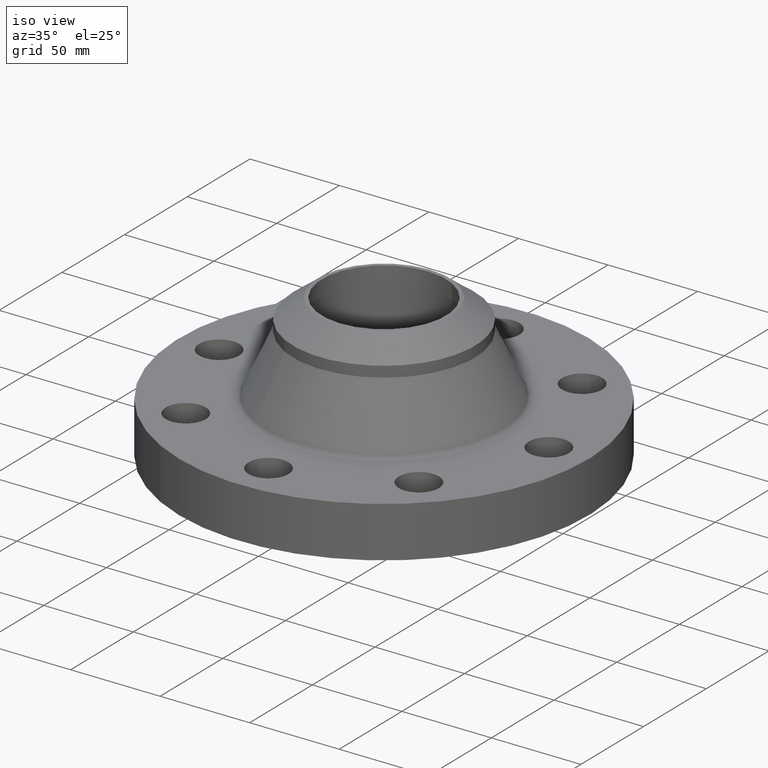
[diagram: clean part render]
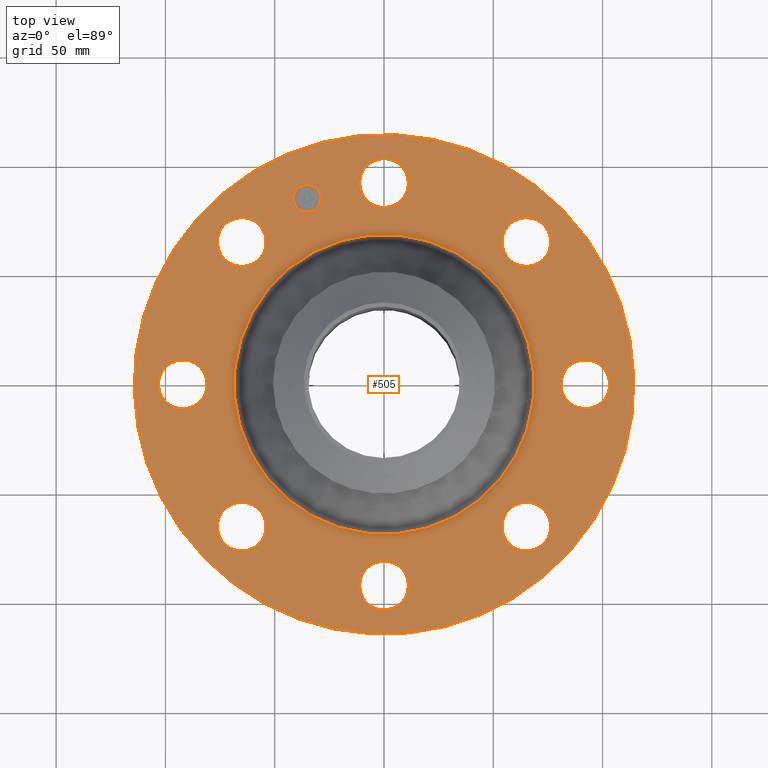
[diagram: tour spotlight — one face highlighted and labeled with its STEP entity id]
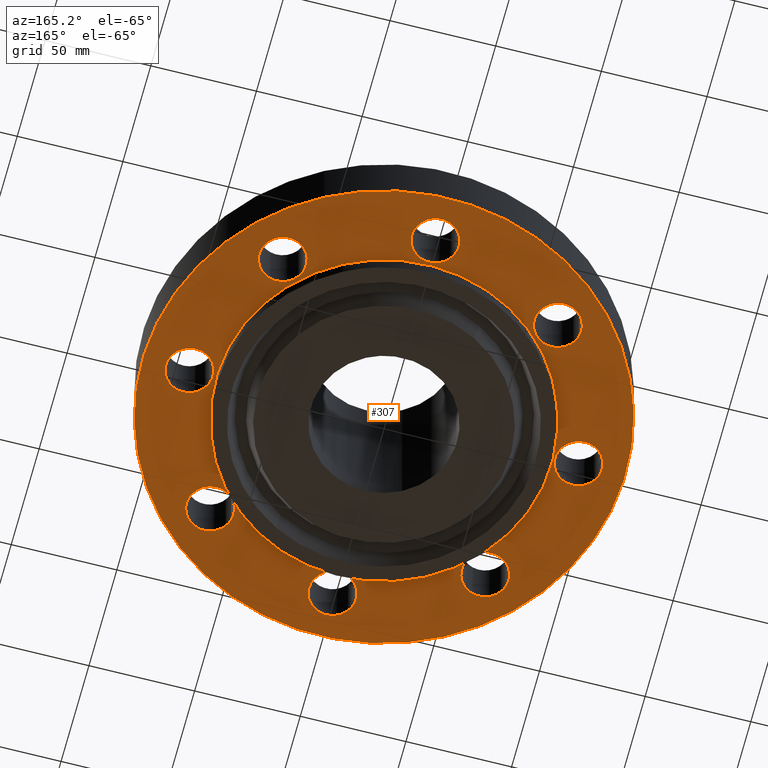
[diagram: tour spotlight — one face highlighted and labeled with its STEP entity id]
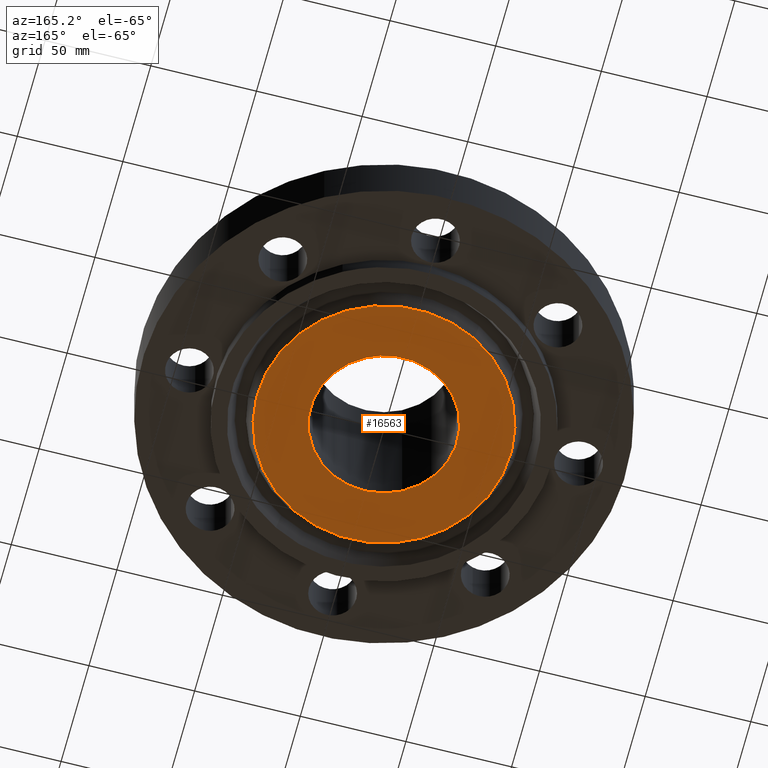
[diagram: tour spotlight — one face highlighted and labeled with its STEP entity id]
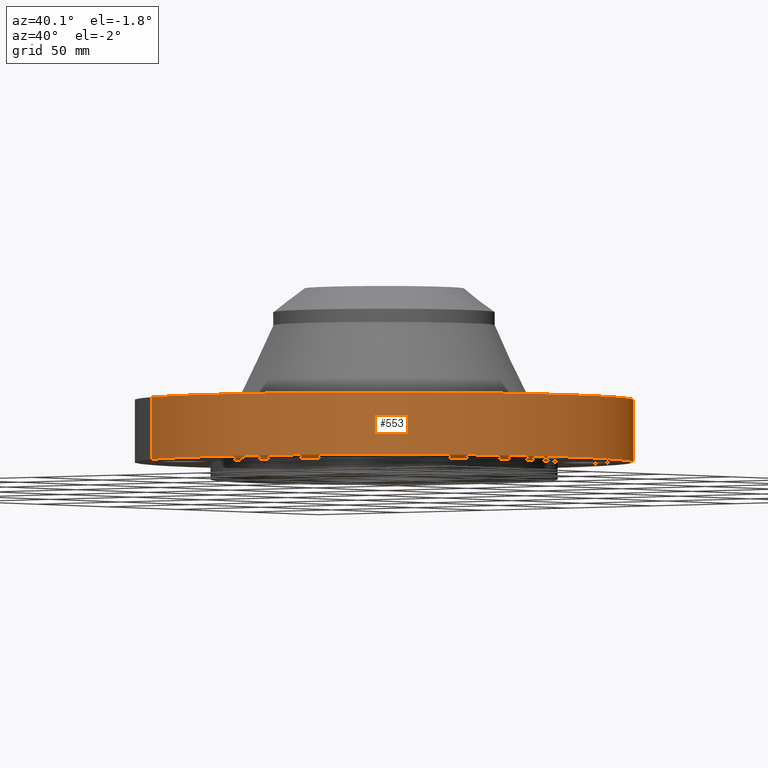
[diagram: tour spotlight — one face highlighted and labeled with its STEP entity id]
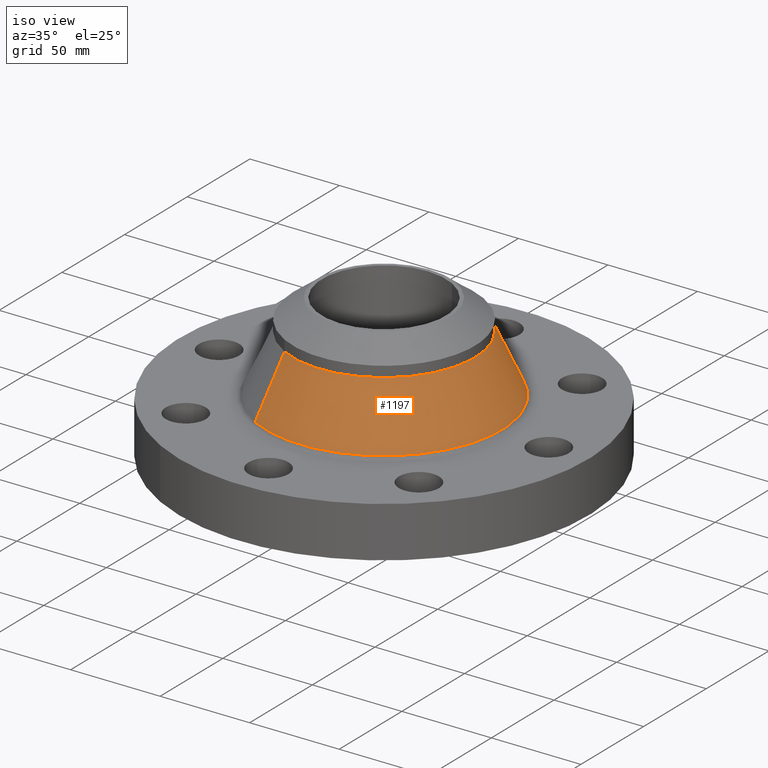
[diagram: tour spotlight — one face highlighted and labeled with its STEP entity id]
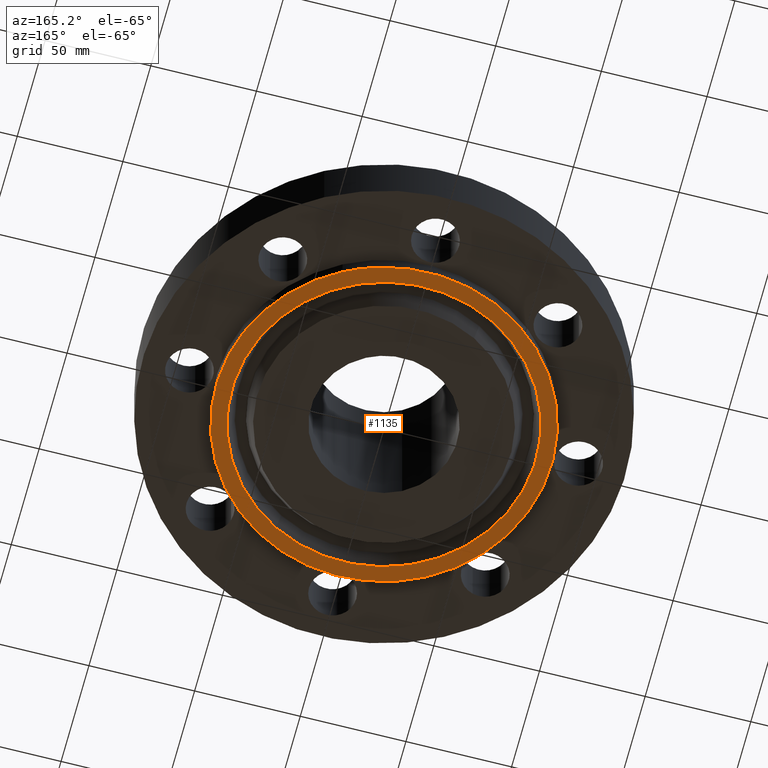
[diagram: tour spotlight — one face highlighted and labeled with its STEP entity id]
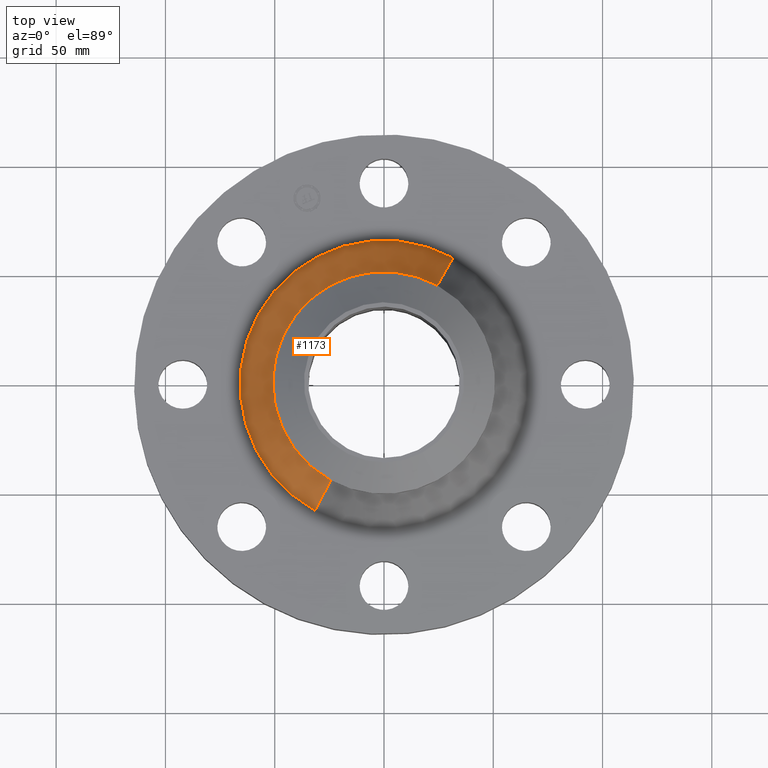
[diagram: tour spotlight — one face highlighted and labeled with its STEP entity id]
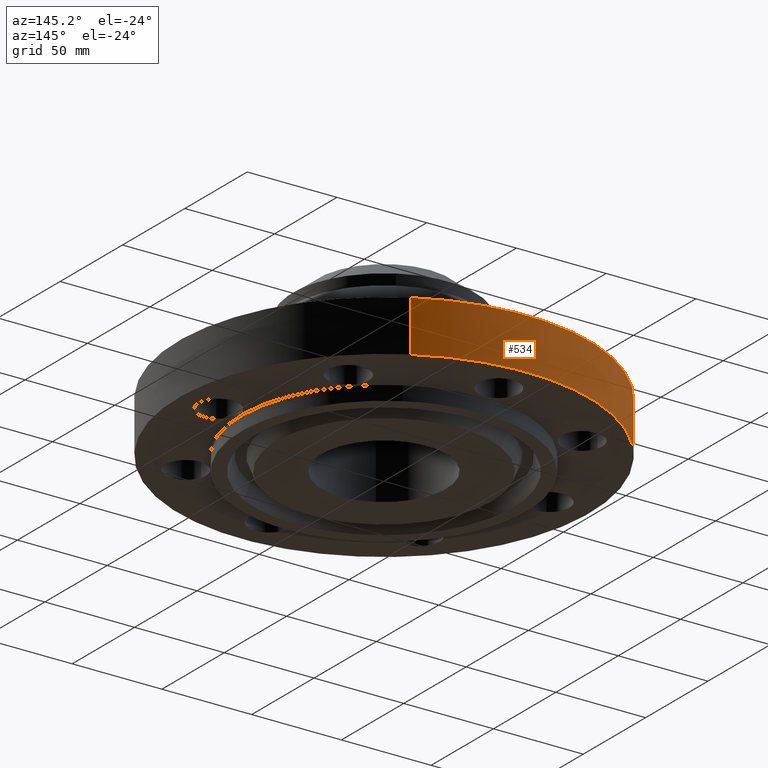
[diagram: tour spotlight — one face highlighted and labeled with its STEP entity id]
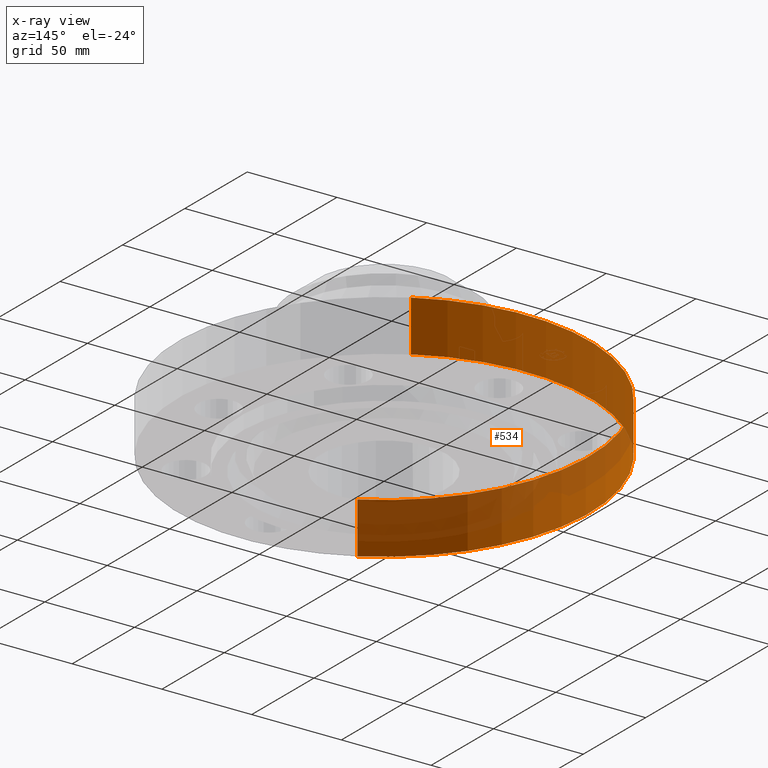
[diagram: x-ray of the same camera — body ghosted, this tour face saturated]
A machine part: a face-by-face anatomy tour. The part has 429 B-rep faces; the first image is the clean iso view, then the 8 largest visible faces are spotlighted one at a time (largest first), each with its STEP entity span.

Face 1 — top view, entity #505. In plain terms, the highlighted planar face has unit normal (0, 0, -1).
Definition (entity closure, byte-faithful):
#65=AXIS2_PLACEMENT_3D('Circle Axis2P3D',#63,#64,$) ;
#319=AXIS2_PLACEMENT_3D('Plane Axis2P3D',#316,#317,#318) ;
#323=AXIS2_PLACEMENT_3D('Circle Axis2P3D',#321,#322,$) ;
#332=AXIS2_PLACEMENT_3D('Circle Axis2P3D',#330,#331,$) ;
#345=AXIS2_PLACEMENT_3D('Circle Axis2P3D',#343,#344,$) ;
#354=AXIS2_PLACEMENT_3D('Circle Axis2P3D',#352,#353,$) ;
#363=AXIS2_PLACEMENT_3D('Circle Axis2P3D',#361,#362,$) ;
#372=AXIS2_PLACEMENT_3D('Circle Axis2P3D',#370,#371,$) ;
#381=AXIS2_PLACEMENT_3D('Circle Axis2P3D',#379,#380,$) ;
#390=AXIS2_PLACEMENT_3D('Circle Axis2P3D',#388,#389,$) ;
#399=AXIS2_PLACEMENT_3D('Circle Axis2P3D',#397,#398,$) ;
#408=AXIS2_PLACEMENT_3D('Circle Axis2P3D',#406,#407,$) ;
#417=AXIS2_PLACEMENT_3D('Circle Axis2P3D',#415,#416,$) ;
#426=AXIS2_PLACEMENT_3D('Circle Axis2P3D',#424,#425,$) ;
#435=AXIS2_PLACEMENT_3D('Circle Axis2P3D',#433,#434,$) ;
#444=AXIS2_PLACEMENT_3D('Circle Axis2P3D',#442,#443,$) ;
#453=AXIS2_PLACEMENT_3D('Circle Axis2P3D',#451,#452,$) ;
#462=AXIS2_PLACEMENT_3D('Circle Axis2P3D',#460,#461,$) ;
#471=AXIS2_PLACEMENT_3D('Circle Axis2P3D',#469,#470,$) ;
#480=AXIS2_PLACEMENT_3D('Circle Axis2P3D',#478,#479,$) ;
#489=AXIS2_PLACEMENT_3D('Circle Axis2P3D',#487,#488,$) ;
#498=AXIS2_PLACEMENT_3D('Circle Axis2P3D',#496,#497,$) ;
#46=CARTESIAN_POINT('Vertex',(-0.386136327233,3.835947237,1.11999999999)) ;
#60=CARTESIAN_POINT('Vertex',(0.386136327236,3.41405276303,1.11999999999)) ;
#63=CARTESIAN_POINT('Axis2P3D Location',(0.,3.62500000001,1.11999999999)) ;
#106=CARTESIAN_POINT('Control Point',(0.386136327233,3.41405276302,1.11999999999)) ;
#107=CARTESIAN_POINT('Control Point',(0.353000812733,3.35339861058,1.11999999999)) ;
#108=CARTESIAN_POINT('Control Point',(0.307955883249,3.29925060119,1.11999999999)) ;
#109=CARTESIAN_POINT('Control Point',(0.252695322491,3.25473715979,1.11999999999)) ;
#110=CARTESIAN_POINT('Control Point',(0.127698083922,3.18977639684,1.11999999999)) ;
#111=CARTESIAN_POINT('Control Point',(-0.0125819155223,3.17690269778,1.11999999999)) ;
#112=CARTESIAN_POINT('Control Point',(-0.0831327890369,3.18450205876,1.11999999999)) ;
#113=CARTESIAN_POINT('Control Point',(-0.217453380045,3.22695425779,1.11999999999)) ;
#114=CARTESIAN_POINT('Control Point',(-0.325749398821,3.31704411676,1.12)) ;
#115=CARTESIAN_POINT('Control Point',(-0.370262840224,3.37230467752,1.12)) ;
#116=CARTESIAN_POINT('Control Point',(-0.435223603166,3.49730191609,1.12)) ;
#117=CARTESIAN_POINT('Control Point',(-0.448097302225,3.63758191553,1.12)) ;
#118=CARTESIAN_POINT('Control Point',(-0.440497941251,3.70813278905,1.12)) ;
#119=CARTESIAN_POINT('Control Point',(-0.419271841734,3.77529308455,1.12)) ;
#120=CARTESIAN_POINT('Control Point',(-0.386136327233,3.835947237,1.12)) ;
#316=CARTESIAN_POINT('Axis2P3D Location',(0.,4.50000000002,1.12)) ;
#321=CARTESIAN_POINT('Axis2P3D Location',(1.1189649382E-015,-9.33216758463E-012,1.12)) ;
#325=CARTESIAN_POINT('Vertex',(2.15741492373,3.94912152852,1.12000000001)) ;
#327=CARTESIAN_POINT('Vertex',(-2.15741492373,-3.94912152852,1.12000000001)) ;
#330=CARTESIAN_POINT('Axis2P3D Location',(-1.1189649382E-015,-9.33328654957E-012,1.12)) ;
#343=CARTESIAN_POINT('Axis2P3D Location',(4.36650890423E-011,3.47886199288E-012,1.12)) ;
#347=CARTESIAN_POINT('Vertex',(-1.29521090955,-2.37086766696,1.12)) ;
#349=CARTESIAN_POINT('Vertex',(1.29521090955,2.37086766696,1.12)) ;
#352=CARTESIAN_POINT('Axis2P3D Location',(-1.28118688012E-011,3.43326417165E-011,1.12)) ;
#361=CARTESIAN_POINT('Axis2P3D Location',(2.56326208182,2.56326208179,1.12)) ;
#365=CARTESIAN_POINT('Vertex',(2.68713947551,2.14106024461,1.11999999999)) ;
#367=CARTESIAN_POINT('Vertex',(2.43938468811,2.98546391901,1.11999999999)) ;
#370=CARTESIAN_POINT('Axis2P3D Location',(2.56326208182,2.56326208179,1.12)) ;
#379=CARTESIAN_POINT('Axis2P3D Location',(3.62500000002,-1.63318527556E-011,1.12)) ;
#383=CARTESIAN_POINT('Vertex',(3.41405276303,-0.386136327236,1.11999999999)) ;
#385=CARTESIAN_POINT('Vertex',(3.835947237,0.386136327233,1.11999999999)) ;
#388=CARTESIAN_POINT('Axis2P3D Location',(3.62499999999,-2.33360137863E-012,1.12)) ;
#397=CARTESIAN_POINT('Axis2P3D Location',(2.56326208181,-2.5632620818,1.12)) ;
#401=CARTESIAN_POINT('Vertex',(2.14106024461,-2.68713947551,1.11999999999)) ;
#403=CARTESIAN_POINT('Vertex',(2.98546391901,-2.43938468811,1.11999999999)) ;
#406=CARTESIAN_POINT('Axis2P3D Location',(2.56326208182,-2.56326208182,1.12)) ;
#415=CARTESIAN_POINT('Axis2P3D Location',(-6.99907323699E-012,-3.62500000003,1.12)) ;
#419=CARTESIAN_POINT('Vertex',(-0.386136327236,-3.41405276303,1.11999999999)) ;
#421=CARTESIAN_POINT('Vertex',(0.386136327233,-3.835947237,1.11999999999)) ;
#424=CARTESIAN_POINT('Axis2P3D Location',(6.99907323699E-012,-3.625,1.12)) ;
#433=CARTESIAN_POINT('Axis2P3D Location',(-2.5632620818,-2.5632620818,1.12)) ;
#437=CARTESIAN_POINT('Vertex',(-2.68713947551,-2.14106024461,1.11999999999)) ;
#439=CARTESIAN_POINT('Vertex',(-2.43938468811,-2.98546391901,1.11999999999)) ;
#442=CARTESIAN_POINT('Axis2P3D Location',(-2.5632620818,-2.5632620818,1.12)) ;
#451=CARTESIAN_POINT('Axis2P3D Location',(-3.62500000002,-2.33360137863E-012,1.12)) ;
#455=CARTESIAN_POINT('Vertex',(-3.41405276303,0.386136327236,1.11999999999)) ;
#457=CARTESIAN_POINT('Vertex',(-3.835947237,-0.386136327233,1.11999999999)) ;
#460=CARTESIAN_POINT('Axis2P3D Location',(-3.62499999999,-1.63318527556E-011,1.12)) ;
#469=CARTESIAN_POINT('Axis2P3D Location',(-2.56326208179,2.56326208179,1.12)) ;
#473=CARTESIAN_POINT('Vertex',(-2.14106024461,2.68713947551,1.11999999999)) ;
#475=CARTESIAN_POINT('Vertex',(-2.98546391901,2.43938468811,1.11999999999)) ;
#478=CARTESIAN_POINT('Axis2P3D Location',(-2.5632620818,2.56326208181,1.12)) ;
#487=CARTESIAN_POINT('Axis2P3D Location',(-1.38722744233,3.34906330541,1.12)) ;
#491=CARTESIAN_POINT('Vertex',(-1.61588762659,3.25434915588,1.12)) ;
#493=CARTESIAN_POINT('Vertex',(-1.15856725803,3.44377745485,1.12)) ;
#496=CARTESIAN_POINT('Axis2P3D Location',(-1.3872274423,3.34906330532,1.12)) ;
#64=DIRECTION('Axis2P3D Direction',(0.,-0.,-0.0393700787402)) ;
#317=DIRECTION('Axis2P3D Direction',(0.,0.,-0.0393700787402)) ;
#318=DIRECTION('Axis2P3D XDirection',(0.0393700787402,0.,0.)) ;
#322=DIRECTION('Axis2P3D Direction',(0.,0.,-0.0393700787402)) ;
#331=DIRECTION('Axis2P3D Direction',(0.,0.,-0.0393700787402)) ;
#344=DIRECTION('Axis2P3D Direction',(0.,0.,-0.0393700787402)) ;
#353=DIRECTION('Axis2P3D Direction',(0.,0.,-0.0393700787402)) ;
#362=DIRECTION('Axis2P3D Direction',(0.,0.,-0.0393700787402)) ;
#371=DIRECTION('Axis2P3D Direction',(0.,0.,-0.0393700787402)) ;
#380=DIRECTION('Axis2P3D Direction',(0.,0.,-0.0393700787402)) ;
#389=DIRECTION('Axis2P3D Direction',(0.,0.,-0.0393700787402)) ;
#398=DIRECTION('Axis2P3D Direction',(0.,0.,-0.0393700787402)) ;
#407=DIRECTION('Axis2P3D Direction',(0.,0.,-0.0393700787402)) ;
#416=DIRECTION('Axis2P3D Direction',(0.,0.,-0.0393700787402)) ;
#425=DIRECTION('Axis2P3D Direction',(0.,0.,-0.0393700787402)) ;
#434=DIRECTION('Axis2P3D Direction',(0.,0.,-0.0393700787402)) ;
#443=DIRECTION('Axis2P3D Direction',(0.,0.,-0.0393700787402)) ;
#452=DIRECTION('Axis2P3D Direction',(0.,0.,-0.0393700787402)) ;
#461=DIRECTION('Axis2P3D Direction',(0.,0.,-0.0393700787402)) ;
#470=DIRECTION('Axis2P3D Direction',(0.,0.,-0.0393700787402)) ;
#479=DIRECTION('Axis2P3D Direction',(0.,0.,-0.0393700787402)) ;
#488=DIRECTION('Axis2P3D Direction',(0.,0.,-0.0393700787402)) ;
#497=DIRECTION('Axis2P3D Direction',(0.,0.,-0.0393700787402)) ;
#336=ORIENTED_EDGE('',*,*,#329,.F.) ;
#337=ORIENTED_EDGE('',*,*,#334,.F.) ;
#340=ORIENTED_EDGE('',*,*,#67,.T.) ;
#341=ORIENTED_EDGE('',*,*,#121,.T.) ;
#358=ORIENTED_EDGE('',*,*,#351,.T.) ;
#359=ORIENTED_EDGE('',*,*,#356,.T.) ;
#376=ORIENTED_EDGE('',*,*,#369,.T.) ;
#377=ORIENTED_EDGE('',*,*,#374,.T.) ;
#394=ORIENTED_EDGE('',*,*,#387,.T.) ;
#395=ORIENTED_EDGE('',*,*,#392,.T.) ;
#412=ORIENTED_EDGE('',*,*,#405,.T.) ;
#413=ORIENTED_EDGE('',*,*,#410,.T.) ;
#430=ORIENTED_EDGE('',*,*,#423,.T.) ;
#431=ORIENTED_EDGE('',*,*,#428,.T.) ;
#448=ORIENTED_EDGE('',*,*,#441,.T.) ;
#449=ORIENTED_EDGE('',*,*,#446,.T.) ;
#466=ORIENTED_EDGE('',*,*,#459,.T.) ;
#467=ORIENTED_EDGE('',*,*,#464,.T.) ;
#484=ORIENTED_EDGE('',*,*,#477,.T.) ;
#485=ORIENTED_EDGE('',*,*,#482,.T.) ;
#502=ORIENTED_EDGE('',*,*,#495,.T.) ;
#503=ORIENTED_EDGE('',*,*,#500,.T.) ;
#342=FACE_BOUND('',#339,.T.) ;
#360=FACE_BOUND('',#357,.T.) ;
#378=FACE_BOUND('',#375,.T.) ;
#396=FACE_BOUND('',#393,.T.) ;
#414=FACE_BOUND('',#411,.T.) ;
#432=FACE_BOUND('',#429,.T.) ;
#450=FACE_BOUND('',#447,.T.) ;
#468=FACE_BOUND('',#465,.T.) ;
#486=FACE_BOUND('',#483,.T.) ;
#504=FACE_BOUND('',#501,.T.) ;
#505=ADVANCED_FACE('PartBody',(#338,#342,#360,#378,#396,#414,#432,#450,#468,#486,#504),#320,.F.) ;
#105=B_SPLINE_CURVE_WITH_KNOTS('',5,(#106,#107,#108,#109,#110,#111,#112,#113,#114,#115,#116,#117,#118,#119,#120),.UNSPECIFIED.,.F.,.U.,(6,3,3,3,6),(-17.5552197483,-8.77760987417,0.,8.77760987417,17.5552197483),.UNSPECIFIED.) ;
#66=CIRCLE('generated circle',#65,0.440000000002) ;
#324=CIRCLE('generated circle',#323,4.50000000003) ;
#333=CIRCLE('generated circle',#332,4.50000000003) ;
#346=CIRCLE('generated circle',#345,2.701589309) ;
#355=CIRCLE('generated circle',#354,2.701589309) ;
#364=CIRCLE('generated circle',#363,0.439999999984) ;
#373=CIRCLE('generated circle',#372,0.439999999984) ;
#382=CIRCLE('generated circle',#381,0.440000000002) ;
#391=CIRCLE('generated circle',#390,0.440000000002) ;
#400=CIRCLE('generated circle',#399,0.439999999984) ;
#409=CIRCLE('generated circle',#408,0.439999999984) ;
#418=CIRCLE('generated circle',#417,0.440000000002) ;
#427=CIRCLE('generated circle',#426,0.440000000002) ;
#436=CIRCLE('generated circle',#435,0.439999999984) ;
#445=CIRCLE('generated circle',#444,0.439999999984) ;
#454=CIRCLE('generated circle',#453,0.440000000002) ;
#463=CIRCLE('generated circle',#462,0.440000000002) ;
#472=CIRCLE('generated circle',#471,0.439999999984) ;
#481=CIRCLE('generated circle',#480,0.439999999984) ;
#490=CIRCLE('generated circle',#489,0.247499999975) ;
#499=CIRCLE('generated circle',#498,0.247499999975) ;
#67=EDGE_CURVE('',#47,#61,#66,.T.) ;
#121=EDGE_CURVE('',#61,#47,#105,.T.) ;
#329=EDGE_CURVE('',#326,#328,#324,.T.) ;
#334=EDGE_CURVE('',#328,#326,#333,.T.) ;
#351=EDGE_CURVE('',#348,#350,#346,.T.) ;
#356=EDGE_CURVE('',#350,#348,#355,.T.) ;
#369=EDGE_CURVE('',#366,#368,#364,.T.) ;
#374=EDGE_CURVE('',#368,#366,#373,.T.) ;
#387=EDGE_CURVE('',#384,#386,#382,.T.) ;
#392=EDGE_CURVE('',#386,#384,#391,.T.) ;
#405=EDGE_CURVE('',#402,#404,#400,.T.) ;
#410=EDGE_CURVE('',#404,#402,#409,.T.) ;
#423=EDGE_CURVE('',#420,#422,#418,.T.) ;
#428=EDGE_CURVE('',#422,#420,#427,.T.) ;
#441=EDGE_CURVE('',#438,#440,#436,.T.) ;
#446=EDGE_CURVE('',#440,#438,#445,.T.) ;
#459=EDGE_CURVE('',#456,#458,#454,.T.) ;
#464=EDGE_CURVE('',#458,#456,#463,.T.) ;
#477=EDGE_CURVE('',#474,#476,#472,.T.) ;
#482=EDGE_CURVE('',#476,#474,#481,.T.) ;
#495=EDGE_CURVE('',#492,#494,#490,.T.) ;
#500=EDGE_CURVE('',#494,#492,#499,.T.) ;
#335=EDGE_LOOP('',(#336,#337)) ;
#339=EDGE_LOOP('',(#340,#341)) ;
#357=EDGE_LOOP('',(#358,#359)) ;
#375=EDGE_LOOP('',(#376,#377)) ;
#393=EDGE_LOOP('',(#394,#395)) ;
#411=EDGE_LOOP('',(#412,#413)) ;
#429=EDGE_LOOP('',(#430,#431)) ;
#447=EDGE_LOOP('',(#448,#449)) ;
#465=EDGE_LOOP('',(#466,#467)) ;
#483=EDGE_LOOP('',(#484,#485)) ;
#501=EDGE_LOOP('',(#502,#503)) ;
#338=FACE_OUTER_BOUND('',#335,.T.) ;
#320=PLANE('',#319) ;
#47=VERTEX_POINT('',#46) ;
#61=VERTEX_POINT('',#60) ;
#326=VERTEX_POINT('',#325) ;
#328=VERTEX_POINT('',#327) ;
#348=VERTEX_POINT('',#347) ;
#350=VERTEX_POINT('',#349) ;
#366=VERTEX_POINT('',#365) ;
#368=VERTEX_POINT('',#367) ;
#384=VERTEX_POINT('',#383) ;
#386=VERTEX_POINT('',#385) ;
#402=VERTEX_POINT('',#401) ;
#404=VERTEX_POINT('',#403) ;
#420=VERTEX_POINT('',#419) ;
#422=VERTEX_POINT('',#421) ;
#438=VERTEX_POINT('',#437) ;
#440=VERTEX_POINT('',#439) ;
#456=VERTEX_POINT('',#455) ;
#458=VERTEX_POINT('',#457) ;
#474=VERTEX_POINT('',#473) ;
#476=VERTEX_POINT('',#475) ;
#492=VERTEX_POINT('',#491) ;
#494=VERTEX_POINT('',#493) ;

Face 2 — auxiliary view, entity #307. In plain terms, the highlighted planar face has unit normal (0, 0, -1).
Definition (entity closure, byte-faithful):
#51=AXIS2_PLACEMENT_3D('Circle Axis2P3D',#49,#50,$) ;
#139=AXIS2_PLACEMENT_3D('Plane Axis2P3D',#136,#137,#138) ;
#143=AXIS2_PLACEMENT_3D('Circle Axis2P3D',#141,#142,$) ;
#152=AXIS2_PLACEMENT_3D('Circle Axis2P3D',#150,#151,$) ;
#165=AXIS2_PLACEMENT_3D('Circle Axis2P3D',#163,#164,$) ;
#174=AXIS2_PLACEMENT_3D('Circle Axis2P3D',#172,#173,$) ;
#183=AXIS2_PLACEMENT_3D('Circle Axis2P3D',#181,#182,$) ;
#192=AXIS2_PLACEMENT_3D('Circle Axis2P3D',#190,#191,$) ;
#201=AXIS2_PLACEMENT_3D('Circle Axis2P3D',#199,#200,$) ;
#210=AXIS2_PLACEMENT_3D('Circle Axis2P3D',#208,#209,$) ;
#219=AXIS2_PLACEMENT_3D('Circle Axis2P3D',#217,#218,$) ;
#228=AXIS2_PLACEMENT_3D('Circle Axis2P3D',#226,#227,$) ;
#237=AXIS2_PLACEMENT_3D('Circle Axis2P3D',#235,#236,$) ;
#246=AXIS2_PLACEMENT_3D('Circle Axis2P3D',#244,#245,$) ;
#255=AXIS2_PLACEMENT_3D('Circle Axis2P3D',#253,#254,$) ;
#264=AXIS2_PLACEMENT_3D('Circle Axis2P3D',#262,#263,$) ;
#273=AXIS2_PLACEMENT_3D('Circle Axis2P3D',#271,#272,$) ;
#282=AXIS2_PLACEMENT_3D('Circle Axis2P3D',#280,#281,$) ;
#291=AXIS2_PLACEMENT_3D('Circle Axis2P3D',#289,#290,$) ;
#300=AXIS2_PLACEMENT_3D('Circle Axis2P3D',#298,#299,$) ;
#44=CARTESIAN_POINT('Vertex',(-0.386136327232,3.835947237,3.15885200761E-011)) ;
#49=CARTESIAN_POINT('Axis2P3D Location',(0.,3.62500000001,3.15885200761E-011)) ;
#53=CARTESIAN_POINT('Vertex',(0.386136327233,3.41405276302,3.15885200761E-011)) ;
#89=CARTESIAN_POINT('Control Point',(0.386136327233,3.41405276302,3.15885200761E-011)) ;
#90=CARTESIAN_POINT('Control Point',(0.353000812733,3.35339861058,3.00090940723E-011)) ;
#91=CARTESIAN_POINT('Control Point',(0.307955883249,3.29925060119,2.84296680685E-011)) ;
#92=CARTESIAN_POINT('Control Point',(0.252695322491,3.25473715979,2.68502770324E-011)) ;
#93=CARTESIAN_POINT('Control Point',(0.127698083922,3.18977639684,2.36914250248E-011)) ;
#94=CARTESIAN_POINT('Control Point',(-0.0125819155223,3.17690269778,2.05325730171E-011)) ;
#95=CARTESIAN_POINT('Control Point',(-0.0831327890369,3.18450205876,1.8953181981E-011)) ;
#96=CARTESIAN_POINT('Control Point',(-0.217453380045,3.22695425779,1.57943299734E-011)) ;
#97=CARTESIAN_POINT('Control Point',(-0.325749398821,3.31704411676,1.26354779658E-011)) ;
#98=CARTESIAN_POINT('Control Point',(-0.370262840224,3.37230467752,1.10560869296E-011)) ;
#99=CARTESIAN_POINT('Control Point',(-0.435223603166,3.49730191609,7.897234922E-012)) ;
#100=CARTESIAN_POINT('Control Point',(-0.448097302225,3.63758191553,4.73838291438E-012)) ;
#101=CARTESIAN_POINT('Control Point',(-0.440497941251,3.70813278905,3.15899187823E-012)) ;
#102=CARTESIAN_POINT('Control Point',(-0.419271841734,3.77529308455,1.57956587442E-012)) ;
#103=CARTESIAN_POINT('Control Point',(-0.386136327233,3.835947237,1.39870617276E-016)) ;
#136=CARTESIAN_POINT('Axis2P3D Location',(0.,3.12500000001,0.)) ;
#141=CARTESIAN_POINT('Axis2P3D Location',(-1.1189649382E-015,9.99963017027E-012,0.)) ;
#145=CARTESIAN_POINT('Vertex',(-2.15741492373,-3.94912152852,-1.78080472503E-011)) ;
#147=CARTESIAN_POINT('Vertex',(2.15741492373,3.94912152852,-1.78080472503E-011)) ;
#150=CARTESIAN_POINT('Axis2P3D Location',(1.1189649382E-015,1.00007491352E-011,0.)) ;
#163=CARTESIAN_POINT('Axis2P3D Location',(3.08537797236E-011,-6.85533869391E-012,0.)) ;
#167=CARTESIAN_POINT('Vertex',(1.49820480811,2.74244550595,0.)) ;
#169=CARTESIAN_POINT('Vertex',(-1.49820480814,-2.74244550592,-1.78080472503E-011)) ;
#172=CARTESIAN_POINT('Axis2P3D Location',(0.,1.00001896527E-011,0.)) ;
#181=CARTESIAN_POINT('Axis2P3D Location',(2.5632620818,2.5632620818,0.)) ;
#185=CARTESIAN_POINT('Vertex',(2.43938468815,2.985463919,0.)) ;
#187=CARTESIAN_POINT('Vertex',(2.68713947554,2.14106024464,0.)) ;
#190=CARTESIAN_POINT('Axis2P3D Location',(2.5632620818,2.5632620818,0.)) ;
#199=CARTESIAN_POINT('Axis2P3D Location',(3.62499999999,1.69993153412E-011,0.)) ;
#203=CARTESIAN_POINT('Vertex',(3.83594723697,0.386136327257,0.)) ;
#205=CARTESIAN_POINT('Vertex',(3.41405276304,-0.386136327237,0.)) ;
#208=CARTESIAN_POINT('Axis2P3D Location',(3.62500000002,3.00106396427E-012,0.)) ;
#217=CARTESIAN_POINT('Axis2P3D Location',(2.5632620818,-2.56326208181,0.)) ;
#221=CARTESIAN_POINT('Vertex',(2.98546391899,-2.43938468814,0.)) ;
#223=CARTESIAN_POINT('Vertex',(2.14106024463,-2.68713947553,0.)) ;
#226=CARTESIAN_POINT('Axis2P3D Location',(2.56326208179,-2.56326208179,0.)) ;
#235=CARTESIAN_POINT('Axis2P3D Location',(3.08535699177E-011,-3.62499999998,0.)) ;
#239=CARTESIAN_POINT('Vertex',(0.386136327247,-3.83594723703,0.)) ;
#241=CARTESIAN_POINT('Vertex',(-0.386136327247,-3.41405276303,0.)) ;
#244=CARTESIAN_POINT('Axis2P3D Location',(1.74838271595E-017,-3.62500000003,0.)) ;
#253=CARTESIAN_POINT('Axis2P3D Location',(-2.56326208182,-2.56326208179,0.)) ;
#257=CARTESIAN_POINT('Vertex',(-2.43938468815,-2.98546391898,0.)) ;
#259=CARTESIAN_POINT('Vertex',(-2.68713947554,-2.14106024462,0.)) ;
#262=CARTESIAN_POINT('Axis2P3D Location',(-2.56326208182,-2.56326208179,0.)) ;
#271=CARTESIAN_POINT('Axis2P3D Location',(-3.62499999999,3.00106396427E-012,0.)) ;
#275=CARTESIAN_POINT('Vertex',(-3.83594723697,-0.386136327237,0.)) ;
#277=CARTESIAN_POINT('Vertex',(-3.41405276304,0.386136327257,0.)) ;
#280=CARTESIAN_POINT('Axis2P3D Location',(-3.62500000002,1.69993153412E-011,0.)) ;
#289=CARTESIAN_POINT('Axis2P3D Location',(-2.56326208182,2.56326208182,0.)) ;
#293=CARTESIAN_POINT('Vertex',(-2.98546391899,2.43938468808,0.)) ;
#295=CARTESIAN_POINT('Vertex',(-2.14106024463,2.68713947548,0.)) ;
#298=CARTESIAN_POINT('Axis2P3D Location',(-2.56326208181,2.5632620818,0.)) ;
#50=DIRECTION('Axis2P3D Direction',(0.,-0.,-0.0393700787402)) ;
#137=DIRECTION('Axis2P3D Direction',(0.,0.,-0.0393700787402)) ;
#138=DIRECTION('Axis2P3D XDirection',(0.0393700787402,0.,0.)) ;
#142=DIRECTION('Axis2P3D Direction',(0.,0.,-0.0393700787402)) ;
#151=DIRECTION('Axis2P3D Direction',(0.,0.,-0.0393700787402)) ;
#164=DIRECTION('Axis2P3D Direction',(0.,0.,-0.0393700787402)) ;
#173=DIRECTION('Axis2P3D Direction',(0.,0.,-0.0393700787402)) ;
#182=DIRECTION('Axis2P3D Direction',(0.,0.,-0.0393700787402)) ;
#191=DIRECTION('Axis2P3D Direction',(0.,0.,-0.0393700787402)) ;
#200=DIRECTION('Axis2P3D Direction',(0.,0.,-0.0393700787402)) ;
#209=DIRECTION('Axis2P3D Direction',(0.,0.,-0.0393700787402)) ;
#218=DIRECTION('Axis2P3D Direction',(0.,0.,-0.0393700787402)) ;
#227=DIRECTION('Axis2P3D Direction',(0.,0.,-0.0393700787402)) ;
#236=DIRECTION('Axis2P3D Direction',(0.,0.,-0.0393700787402)) ;
#245=DIRECTION('Axis2P3D Direction',(0.,0.,-0.0393700787402)) ;
#254=DIRECTION('Axis2P3D Direction',(0.,0.,-0.0393700787402)) ;
#263=DIRECTION('Axis2P3D Direction',(0.,0.,-0.0393700787402)) ;
#272=DIRECTION('Axis2P3D Direction',(0.,0.,-0.0393700787402)) ;
#281=DIRECTION('Axis2P3D Direction',(0.,0.,-0.0393700787402)) ;
#290=DIRECTION('Axis2P3D Direction',(0.,0.,-0.0393700787402)) ;
#299=DIRECTION('Axis2P3D Direction',(0.,0.,-0.0393700787402)) ;
#156=ORIENTED_EDGE('',*,*,#149,.T.) ;
#157=ORIENTED_EDGE('',*,*,#154,.T.) ;
#160=ORIENTED_EDGE('',*,*,#104,.F.) ;
#161=ORIENTED_EDGE('',*,*,#55,.F.) ;
#178=ORIENTED_EDGE('',*,*,#171,.F.) ;
#179=ORIENTED_EDGE('',*,*,#176,.F.) ;
#196=ORIENTED_EDGE('',*,*,#189,.F.) ;
#197=ORIENTED_EDGE('',*,*,#194,.F.) ;
#214=ORIENTED_EDGE('',*,*,#207,.F.) ;
#215=ORIENTED_EDGE('',*,*,#212,.F.) ;
#232=ORIENTED_EDGE('',*,*,#225,.F.) ;
#233=ORIENTED_EDGE('',*,*,#230,.F.) ;
#250=ORIENTED_EDGE('',*,*,#243,.F.) ;
#251=ORIENTED_EDGE('',*,*,#248,.F.) ;
#268=ORIENTED_EDGE('',*,*,#261,.F.) ;
#269=ORIENTED_EDGE('',*,*,#266,.F.) ;
#286=ORIENTED_EDGE('',*,*,#279,.F.) ;
#287=ORIENTED_EDGE('',*,*,#284,.F.) ;
#304=ORIENTED_EDGE('',*,*,#297,.F.) ;
#305=ORIENTED_EDGE('',*,*,#302,.F.) ;
#162=FACE_BOUND('',#159,.T.) ;
#180=FACE_BOUND('',#177,.T.) ;
#198=FACE_BOUND('',#195,.T.) ;
#216=FACE_BOUND('',#213,.T.) ;
#234=FACE_BOUND('',#231,.T.) ;
#252=FACE_BOUND('',#249,.T.) ;
#270=FACE_BOUND('',#267,.T.) ;
#288=FACE_BOUND('',#285,.T.) ;
#306=FACE_BOUND('',#303,.T.) ;
#307=ADVANCED_FACE('PartBody',(#158,#162,#180,#198,#216,#234,#252,#270,#288,#306),#140,.T.) ;
#88=B_SPLINE_CURVE_WITH_KNOTS('',5,(#89,#90,#91,#92,#93,#94,#95,#96,#97,#98,#99,#100,#101,#102,#103),.UNSPECIFIED.,.F.,.U.,(6,3,3,3,6),(-17.5552197483,-8.77760987417,0.,8.77760987417,17.5552197483),.UNSPECIFIED.) ;
#52=CIRCLE('generated circle',#51,0.440000000002) ;
#144=CIRCLE('generated circle',#143,4.50000000003) ;
#153=CIRCLE('generated circle',#152,4.50000000003) ;
#166=CIRCLE('generated circle',#165,3.12500000001) ;
#175=CIRCLE('generated circle',#174,3.12500000001) ;
#184=CIRCLE('generated circle',#183,0.439999999984) ;
#193=CIRCLE('generated circle',#192,0.439999999984) ;
#202=CIRCLE('generated circle',#201,0.440000000002) ;
#211=CIRCLE('generated circle',#210,0.440000000002) ;
#220=CIRCLE('generated circle',#219,0.439999999984) ;
#229=CIRCLE('generated circle',#228,0.439999999984) ;
#238=CIRCLE('generated circle',#237,0.44000000002) ;
#247=CIRCLE('generated circle',#246,0.44000000002) ;
#256=CIRCLE('generated circle',#255,0.439999999984) ;
#265=CIRCLE('generated circle',#264,0.439999999984) ;
#274=CIRCLE('generated circle',#273,0.440000000002) ;
#283=CIRCLE('generated circle',#282,0.440000000002) ;
#292=CIRCLE('generated circle',#291,0.439999999984) ;
#301=CIRCLE('generated circle',#300,0.439999999984) ;
#55=EDGE_CURVE('',#45,#54,#52,.T.) ;
#104=EDGE_CURVE('',#54,#45,#88,.T.) ;
#149=EDGE_CURVE('',#146,#148,#144,.T.) ;
#154=EDGE_CURVE('',#148,#146,#153,.T.) ;
#171=EDGE_CURVE('',#168,#170,#166,.T.) ;
#176=EDGE_CURVE('',#170,#168,#175,.T.) ;
#189=EDGE_CURVE('',#186,#188,#184,.T.) ;
#194=EDGE_CURVE('',#188,#186,#193,.T.) ;
#207=EDGE_CURVE('',#204,#206,#202,.T.) ;
#212=EDGE_CURVE('',#206,#204,#211,.T.) ;
#225=EDGE_CURVE('',#222,#224,#220,.T.) ;
#230=EDGE_CURVE('',#224,#222,#229,.T.) ;
#243=EDGE_CURVE('',#240,#242,#238,.T.) ;
#248=EDGE_CURVE('',#242,#240,#247,.T.) ;
#261=EDGE_CURVE('',#258,#260,#256,.T.) ;
#266=EDGE_CURVE('',#260,#258,#265,.T.) ;
#279=EDGE_CURVE('',#276,#278,#274,.T.) ;
#284=EDGE_CURVE('',#278,#276,#283,.T.) ;
#297=EDGE_CURVE('',#294,#296,#292,.T.) ;
#302=EDGE_CURVE('',#296,#294,#301,.T.) ;
#155=EDGE_LOOP('',(#156,#157)) ;
#159=EDGE_LOOP('',(#160,#161)) ;
#177=EDGE_LOOP('',(#178,#179)) ;
#195=EDGE_LOOP('',(#196,#197)) ;
#213=EDGE_LOOP('',(#214,#215)) ;
#231=EDGE_LOOP('',(#232,#233)) ;
#249=EDGE_LOOP('',(#250,#251)) ;
#267=EDGE_LOOP('',(#268,#269)) ;
#285=EDGE_LOOP('',(#286,#287)) ;
#303=EDGE_LOOP('',(#304,#305)) ;
#158=FACE_OUTER_BOUND('',#155,.T.) ;
#140=PLANE('',#139) ;
#45=VERTEX_POINT('',#44) ;
#54=VERTEX_POINT('',#53) ;
#146=VERTEX_POINT('',#145) ;
#148=VERTEX_POINT('',#147) ;
#168=VERTEX_POINT('',#167) ;
#170=VERTEX_POINT('',#169) ;
#186=VERTEX_POINT('',#185) ;
#188=VERTEX_POINT('',#187) ;
#204=VERTEX_POINT('',#203) ;
#206=VERTEX_POINT('',#205) ;
#222=VERTEX_POINT('',#221) ;
#224=VERTEX_POINT('',#223) ;
#240=VERTEX_POINT('',#239) ;
#242=VERTEX_POINT('',#241) ;
#258=VERTEX_POINT('',#257) ;
#260=VERTEX_POINT('',#259) ;
#276=VERTEX_POINT('',#275) ;
#278=VERTEX_POINT('',#277) ;
#294=VERTEX_POINT('',#293) ;
#296=VERTEX_POINT('',#295) ;

Face 3 — auxiliary view, entity #16563. In plain terms, the highlighted planar face has unit normal (0, 0, -1).
Definition (entity closure, byte-faithful):
#1111=AXIS2_PLACEMENT_3D('Plane Axis2P3D',#1108,#1109,#1110) ;
#16058=AXIS2_PLACEMENT_3D('Circle Axis2P3D',#16056,#16057,$) ;
#16514=AXIS2_PLACEMENT_3D('Circle Axis2P3D',#16512,#16513,$) ;
#16538=AXIS2_PLACEMENT_3D('Circle Axis2P3D',#16536,#16537,$) ;
#1108=CARTESIAN_POINT('Axis2P3D Location',(0.,1.36400000001,-0.313000000001)) ;
#16010=CARTESIAN_POINT('Vertex',(-0.653936434661,-1.19702261443,-0.312999999975)) ;
#16014=CARTESIAN_POINT('Control Point',(-0.653936434662,-1.19702261443,-0.312999999975)) ;
#16015=CARTESIAN_POINT('Control Point',(-0.841964307246,-1.09430251947,-0.312999999976)) ;
#16016=CARTESIAN_POINT('Control Point',(-1.00982313635,-0.954663238073,-0.312999999978)) ;
#16017=CARTESIAN_POINT('Control Point',(-1.1478148047,-0.783355499722,-0.312999999979)) ;
#16018=CARTESIAN_POINT('Control Point',(-1.34919316982,-0.395864060159,-0.312999999982)) ;
#16019=CARTESIAN_POINT('Control Point',(-1.3891016369,0.0390039381201,-0.312999999984)) ;
#16020=CARTESIAN_POINT('Control Point',(-1.36554361788,0.257711646016,-0.312999999985)) ;
#16021=CARTESIAN_POINT('Control Point',(-1.23394180088,0.674105478142,-0.312999999988)) ;
#16022=CARTESIAN_POINT('Control Point',(-0.954663238073,1.00982313635,-0.312999999991)) ;
#16023=CARTESIAN_POINT('Control Point',(-0.783355499723,1.1478148047,-0.312999999992)) ;
#16024=CARTESIAN_POINT('Control Point',(-0.39586406016,1.34919316982,-0.312999999995)) ;
#16025=CARTESIAN_POINT('Control Point',(0.0390039381195,1.3891016369,-0.312999999997)) ;
#16026=CARTESIAN_POINT('Control Point',(0.257711646015,1.36554361788,-0.312999999998)) ;
#16027=CARTESIAN_POINT('Control Point',(0.465908562078,1.29974270938,-0.313)) ;
#16028=CARTESIAN_POINT('Control Point',(0.653936434661,1.19702261443,-0.313000000001)) ;
#16029=CARTESIAN_POINT('Vertex',(0.653936434662,1.19702261443,-0.312999999975)) ;
#16056=CARTESIAN_POINT('Axis2P3D Location',(0.,0.,-0.312999999975)) ;
#16502=CARTESIAN_POINT('Vertex',(-1.13120455838,2.07065605477,-0.313000000001)) ;
#16509=CARTESIAN_POINT('Vertex',(1.13120455838,-2.07065605478,-0.313000000001)) ;
#16512=CARTESIAN_POINT('Axis2P3D Location',(0.,0.,-0.313000000002)) ;
#16536=CARTESIAN_POINT('Axis2P3D Location',(0.,0.,-0.313000000002)) ;
#1109=DIRECTION('Axis2P3D Direction',(0.,0.,-0.0393700787402)) ;
#1110=DIRECTION('Axis2P3D XDirection',(0.0393700787402,0.,0.)) ;
#16057=DIRECTION('Axis2P3D Direction',(-0.,0.,-0.0393700787402)) ;
#16513=DIRECTION('Axis2P3D Direction',(0.,0.,0.0393700787402)) ;
#16537=DIRECTION('Axis2P3D Direction',(0.,0.,0.0393700787402)) ;
#16556=ORIENTED_EDGE('',*,*,#16516,.T.) ;
#16557=ORIENTED_EDGE('',*,*,#16540,.T.) ;
#16560=ORIENTED_EDGE('',*,*,#16060,.F.) ;
#16561=ORIENTED_EDGE('',*,*,#16031,.F.) ;
#16562=FACE_BOUND('',#16559,.T.) ;
#16563=ADVANCED_FACE('PartBody',(#16558,#16562),#1112,.T.) ;
#16013=B_SPLINE_CURVE_WITH_KNOTS('',5,(#16014,#16015,#16016,#16017,#16018,#16019,#16020,#16021,#16022,#16023,#16024,#16025,#16026,#16027,#16028),.UNSPECIFIED.,.F.,.U.,(6,3,3,3,6),(-54.42118122,-27.21059061,3.5527136788E-015,27.21059061,54.42118122),.UNSPECIFIED.) ;
#16059=CIRCLE('generated circle',#16058,1.36400000001) ;
#16515=CIRCLE('generated circle',#16514,2.35950000001) ;
#16539=CIRCLE('generated circle',#16538,2.35950000001) ;
#16031=EDGE_CURVE('',#16011,#16030,#16013,.T.) ;
#16060=EDGE_CURVE('',#16030,#16011,#16059,.T.) ;
#16516=EDGE_CURVE('',#16503,#16510,#16515,.F.) ;
#16540=EDGE_CURVE('',#16510,#16503,#16539,.F.) ;
#16555=EDGE_LOOP('',(#16556,#16557)) ;
#16559=EDGE_LOOP('',(#16560,#16561)) ;
#16558=FACE_OUTER_BOUND('',#16555,.T.) ;
#1112=PLANE('',#1111) ;
#16011=VERTEX_POINT('',#16010) ;
#16030=VERTEX_POINT('',#16029) ;
#16503=VERTEX_POINT('',#16502) ;
#16510=VERTEX_POINT('',#16509) ;

Face 4 — auxiliary view, entity #553. In plain terms, the highlighted cylindrical surface (partial cylindrical patch) has radius 114.3 mm, axis along (0, 0, -1).
Definition (entity closure, byte-faithful):
#152=AXIS2_PLACEMENT_3D('Circle Axis2P3D',#150,#151,$) ;
#323=AXIS2_PLACEMENT_3D('Circle Axis2P3D',#321,#322,$) ;
#545=AXIS2_PLACEMENT_3D('Cylinder Axis2P3D',#542,#543,#544) ;
#145=CARTESIAN_POINT('Vertex',(-2.15741492373,-3.94912152852,-1.78080472503E-011)) ;
#147=CARTESIAN_POINT('Vertex',(2.15741492373,3.94912152852,-1.78080472503E-011)) ;
#150=CARTESIAN_POINT('Axis2P3D Location',(1.1189649382E-015,1.00007491352E-011,0.)) ;
#321=CARTESIAN_POINT('Axis2P3D Location',(1.1189649382E-015,-9.33216758463E-012,1.12)) ;
#325=CARTESIAN_POINT('Vertex',(2.15741492373,3.94912152852,1.12000000001)) ;
#327=CARTESIAN_POINT('Vertex',(-2.15741492373,-3.94912152852,1.12000000001)) ;
#518=CARTESIAN_POINT('Line Origine',(-2.15741492373,-3.94912152852,0.559999999998)) ;
#523=CARTESIAN_POINT('Line Origine',(2.15741492373,3.94912152852,0.559999999998)) ;
#542=CARTESIAN_POINT('Axis2P3D Location',(0.,0.,1.40850000001)) ;
#151=DIRECTION('Axis2P3D Direction',(0.,0.,-0.0393700787402)) ;
#322=DIRECTION('Axis2P3D Direction',(0.,0.,-0.0393700787402)) ;
#519=DIRECTION('Vector Direction',(0.,0.,-0.0393700787402)) ;
#524=DIRECTION('Vector Direction',(0.,0.,-0.0393700787402)) ;
#543=DIRECTION('Axis2P3D Direction',(0.,0.,-0.0393700787402)) ;
#544=DIRECTION('Axis2P3D XDirection',(0.0188750212049,0.0345504945626,0.)) ;
#520=VECTOR('Line Direction',#519,0.0393700787402) ;
#525=VECTOR('Line Direction',#524,0.0393700787402) ;
#548=ORIENTED_EDGE('',*,*,#154,.F.) ;
#549=ORIENTED_EDGE('',*,*,#527,.T.) ;
#550=ORIENTED_EDGE('',*,*,#329,.T.) ;
#551=ORIENTED_EDGE('',*,*,#522,.F.) ;
#553=ADVANCED_FACE('PartBody',(#552),#546,.T.) ;
#153=CIRCLE('generated circle',#152,4.50000000003) ;
#324=CIRCLE('generated circle',#323,4.50000000003) ;
#546=CYLINDRICAL_SURFACE('generated cylinder',#545,4.50000000002) ;
#154=EDGE_CURVE('',#148,#146,#153,.T.) ;
#329=EDGE_CURVE('',#326,#328,#324,.T.) ;
#522=EDGE_CURVE('',#146,#328,#521,.F.) ;
#527=EDGE_CURVE('',#148,#326,#526,.F.) ;
#547=EDGE_LOOP('',(#548,#549,#550,#551)) ;
#552=FACE_OUTER_BOUND('',#547,.T.) ;
#521=LINE('Line',#518,#520) ;
#526=LINE('Line',#523,#525) ;
#146=VERTEX_POINT('',#145) ;
#148=VERTEX_POINT('',#147) ;
#326=VERTEX_POINT('',#325) ;
#328=VERTEX_POINT('',#327) ;

Face 5 — iso view, entity #1197. In plain terms, the highlighted conical surface has half-angle 24.904 deg.
Definition (entity closure, byte-faithful):
#1016=AXIS2_PLACEMENT_3D('Circle Axis2P3D',#1014,#1015,$) ;
#1184=AXIS2_PLACEMENT_3D('Cone Axis2P3D',#1181,#1182,#1183) ;
#1188=AXIS2_PLACEMENT_3D('Circle Axis2P3D',#1186,#1187,$) ;
#980=CARTESIAN_POINT('Vertex',(-1.24302954502,-2.27535031989,1.18946742036)) ;
#987=CARTESIAN_POINT('Vertex',(1.24302954502,2.27535031989,1.18946742036)) ;
#1014=CARTESIAN_POINT('Axis2P3D Location',(0.,0.,1.18946742036)) ;
#1148=CARTESIAN_POINT('Line Origine',(-1.10094031112,-2.01525772184,1.82782321573)) ;
#1152=CARTESIAN_POINT('Vertex',(-0.958851077212,-1.75516512379,2.46617901109)) ;
#1159=CARTESIAN_POINT('Vertex',(0.958851077214,1.75516512379,2.46617901109)) ;
#1162=CARTESIAN_POINT('Line Origine',(1.10094031112,2.01525772184,1.82782321573)) ;
#1181=CARTESIAN_POINT('Axis2P3D Location',(0.,0.,2.46617901109)) ;
#1186=CARTESIAN_POINT('Axis2P3D Location',(0.,0.,2.46617901109)) ;
#1015=DIRECTION('Axis2P3D Direction',(-0.,0.,-0.0393700787402)) ;
#1149=DIRECTION('Vector Direction',(-0.00794836260201,-0.0145493801507,-0.035709132854)) ;
#1163=DIRECTION('Vector Direction',(0.00794836260201,0.0145493801507,-0.035709132854)) ;
#1182=DIRECTION('Axis2P3D Direction',(0.,0.,-0.0393700787402)) ;
#1183=DIRECTION('Axis2P3D XDirection',(0.0188750212049,0.0345504945626,0.)) ;
#1187=DIRECTION('Axis2P3D Direction',(-0.,0.,-0.0393700787402)) ;
#1150=VECTOR('Line Direction',#1149,0.0393700787402) ;
#1164=VECTOR('Line Direction',#1163,0.0393700787402) ;
#1192=ORIENTED_EDGE('',*,*,#1018,.F.) ;
#1193=ORIENTED_EDGE('',*,*,#1166,.T.) ;
#1194=ORIENTED_EDGE('',*,*,#1190,.T.) ;
#1195=ORIENTED_EDGE('',*,*,#1154,.F.) ;
#1197=ADVANCED_FACE('PartBody',(#1196),#1185,.T.) ;
#1017=CIRCLE('generated circle',#1016,2.59274787205) ;
#1189=CIRCLE('generated circle',#1188,2.00000000001) ;
#1185=CONICAL_SURFACE('Cone',#1184,2.00000000001,0.434663075075) ;
#1018=EDGE_CURVE('',#988,#981,#1017,.T.) ;
#1154=EDGE_CURVE('',#981,#1153,#1151,.F.) ;
#1166=EDGE_CURVE('',#988,#1160,#1165,.F.) ;
#1190=EDGE_CURVE('',#1160,#1153,#1189,.T.) ;
#1191=EDGE_LOOP('',(#1192,#1193,#1194,#1195)) ;
#1196=FACE_OUTER_BOUND('',#1191,.T.) ;
#1151=LINE('Line',#1148,#1150) ;
#1165=LINE('Line',#1162,#1164) ;
#981=VERTEX_POINT('',#980) ;
#988=VERTEX_POINT('',#987) ;
#1153=VERTEX_POINT('',#1152) ;
#1160=VERTEX_POINT('',#1159) ;

Face 6 — auxiliary view, entity #1135. In plain terms, the highlighted planar face has unit normal (0, 0, -1).
Definition (entity closure, byte-faithful):
#568=AXIS2_PLACEMENT_3D('Circle Axis2P3D',#566,#567,$) ;
#1111=AXIS2_PLACEMENT_3D('Plane Axis2P3D',#1108,#1109,#1110) ;
#1119=AXIS2_PLACEMENT_3D('Circle Axis2P3D',#1117,#1118,$) ;
#1128=AXIS2_PLACEMENT_3D('Circle Axis2P3D',#1126,#1127,$) ;
#566=CARTESIAN_POINT('Axis2P3D Location',(0.,0.,-0.312999999975)) ;
#570=CARTESIAN_POINT('Vertex',(1.49820480814,2.74244550592,-0.312999999975)) ;
#572=CARTESIAN_POINT('Vertex',(-1.49820480811,-2.74244550594,-0.313000000001)) ;
#605=CARTESIAN_POINT('Control Point',(-1.49820480814,-2.74244550592,-0.313000000001)) ;
#606=CARTESIAN_POINT('Control Point',(-1.92898714086,-2.50710804497,-0.313)) ;
#607=CARTESIAN_POINT('Control Point',(-2.31356107117,-2.1871866708,-0.312999999998)) ;
#608=CARTESIAN_POINT('Control Point',(-2.62970767204,-1.79471109723,-0.312999999997)) ;
#609=CARTESIAN_POINT('Control Point',(-3.09107672702,-0.906946618766,-0.312999999995)) ;
#610=CARTESIAN_POINT('Control Point',(-3.18250924875,0.0893601954689,-0.312999999992)) ;
#611=CARTESIAN_POINT('Control Point',(-3.12853651457,0.590431740316,-0.312999999991)) ;
#612=CARTESIAN_POINT('Control Point',(-2.82702941915,1.54441321054,-0.312999999988)) ;
#613=CARTESIAN_POINT('Control Point',(-2.1871866708,2.31356107117,-0.312999999985)) ;
#614=CARTESIAN_POINT('Control Point',(-1.79471109724,2.62970767204,-0.312999999984)) ;
#615=CARTESIAN_POINT('Control Point',(-0.906946618769,3.09107672702,-0.312999999982)) ;
#616=CARTESIAN_POINT('Control Point',(0.089360195466,3.18250924875,-0.312999999979)) ;
#617=CARTESIAN_POINT('Control Point',(0.590431740313,3.12853651457,-0.312999999978)) ;
#618=CARTESIAN_POINT('Control Point',(1.06742247543,2.97778296686,-0.312999999976)) ;
#619=CARTESIAN_POINT('Control Point',(1.49820480814,2.74244550592,-0.312999999975)) ;
#1108=CARTESIAN_POINT('Axis2P3D Location',(0.,1.36400000001,-0.313000000001)) ;
#1117=CARTESIAN_POINT('Axis2P3D Location',(-1.39870617276E-016,-5.60545485794E-012,-0.313000000001)) ;
#1121=CARTESIAN_POINT('Vertex',(1.35605513595,-2.48224227631,-0.313000000001)) ;
#1123=CARTESIAN_POINT('Vertex',(-1.35605513595,2.4822422763,-0.313000000001)) ;
#1126=CARTESIAN_POINT('Axis2P3D Location',(1.39870617276E-016,-5.604335893E-012,-0.313000000001)) ;
#567=DIRECTION('Axis2P3D Direction',(0.,0.,-0.0393700787402)) ;
#1109=DIRECTION('Axis2P3D Direction',(0.,0.,-0.0393700787402)) ;
#1110=DIRECTION('Axis2P3D XDirection',(0.0393700787402,0.,0.)) ;
#1118=DIRECTION('Axis2P3D Direction',(0.,0.,-0.0393700787402)) ;
#1127=DIRECTION('Axis2P3D Direction',(0.,0.,-0.0393700787402)) ;
#1114=ORIENTED_EDGE('',*,*,#620,.T.) ;
#1115=ORIENTED_EDGE('',*,*,#574,.T.) ;
#1132=ORIENTED_EDGE('',*,*,#1125,.F.) ;
#1133=ORIENTED_EDGE('',*,*,#1130,.F.) ;
#1134=FACE_BOUND('',#1131,.T.) ;
#1135=ADVANCED_FACE('PartBody',(#1116,#1134),#1112,.T.) ;
#604=B_SPLINE_CURVE_WITH_KNOTS('',5,(#605,#606,#607,#608,#609,#610,#611,#612,#613,#614,#615,#616,#617,#618,#619),.UNSPECIFIED.,.F.,.U.,(6,3,3,3,6),(-124.68195844,-62.3409792198,0.,62.3409792198,124.68195844),.UNSPECIFIED.) ;
#569=CIRCLE('generated circle',#568,3.12500000001) ;
#1120=CIRCLE('generated circle',#1119,2.8285) ;
#1129=CIRCLE('generated circle',#1128,2.8285) ;
#574=EDGE_CURVE('',#571,#573,#569,.T.) ;
#620=EDGE_CURVE('',#573,#571,#604,.T.) ;
#1125=EDGE_CURVE('',#1122,#1124,#1120,.T.) ;
#1130=EDGE_CURVE('',#1124,#1122,#1129,.T.) ;
#1113=EDGE_LOOP('',(#1114,#1115)) ;
#1131=EDGE_LOOP('',(#1132,#1133)) ;
#1116=FACE_OUTER_BOUND('',#1113,.T.) ;
#1112=PLANE('',#1111) ;
#571=VERTEX_POINT('',#570) ;
#573=VERTEX_POINT('',#572) ;
#1122=VERTEX_POINT('',#1121) ;
#1124=VERTEX_POINT('',#1123) ;

Face 7 — top view, entity #1173. In plain terms, the highlighted conical surface has half-angle 24.904 deg.
Definition (entity closure, byte-faithful):
#985=AXIS2_PLACEMENT_3D('Circle Axis2P3D',#983,#984,$) ;
#1146=AXIS2_PLACEMENT_3D('Cone Axis2P3D',#1143,#1144,#1145) ;
#1157=AXIS2_PLACEMENT_3D('Circle Axis2P3D',#1155,#1156,$) ;
#980=CARTESIAN_POINT('Vertex',(-1.24302954502,-2.27535031989,1.18946742036)) ;
#983=CARTESIAN_POINT('Axis2P3D Location',(0.,0.,1.18946742036)) ;
#987=CARTESIAN_POINT('Vertex',(1.24302954502,2.27535031989,1.18946742036)) ;
#1143=CARTESIAN_POINT('Axis2P3D Location',(0.,0.,2.46617901109)) ;
#1148=CARTESIAN_POINT('Line Origine',(-1.10094031112,-2.01525772184,1.82782321573)) ;
#1152=CARTESIAN_POINT('Vertex',(-0.958851077212,-1.75516512379,2.46617901109)) ;
#1155=CARTESIAN_POINT('Axis2P3D Location',(0.,0.,2.46617901109)) ;
#1159=CARTESIAN_POINT('Vertex',(0.958851077214,1.75516512379,2.46617901109)) ;
#1162=CARTESIAN_POINT('Line Origine',(1.10094031112,2.01525772184,1.82782321573)) ;
#984=DIRECTION('Axis2P3D Direction',(-0.,0.,-0.0393700787402)) ;
#1144=DIRECTION('Axis2P3D Direction',(0.,0.,-0.0393700787402)) ;
#1145=DIRECTION('Axis2P3D XDirection',(-0.0188750212049,-0.0345504945626,0.)) ;
#1149=DIRECTION('Vector Direction',(-0.00794836260201,-0.0145493801507,-0.035709132854)) ;
#1156=DIRECTION('Axis2P3D Direction',(-0.,0.,-0.0393700787402)) ;
#1163=DIRECTION('Vector Direction',(0.00794836260201,0.0145493801507,-0.035709132854)) ;
#1150=VECTOR('Line Direction',#1149,0.0393700787402) ;
#1164=VECTOR('Line Direction',#1163,0.0393700787402) ;
#1168=ORIENTED_EDGE('',*,*,#989,.F.) ;
#1169=ORIENTED_EDGE('',*,*,#1154,.T.) ;
#1170=ORIENTED_EDGE('',*,*,#1161,.T.) ;
#1171=ORIENTED_EDGE('',*,*,#1166,.F.) ;
#1173=ADVANCED_FACE('PartBody',(#1172),#1147,.T.) ;
#986=CIRCLE('generated circle',#985,2.59274787205) ;
#1158=CIRCLE('generated circle',#1157,2.00000000001) ;
#1147=CONICAL_SURFACE('Cone',#1146,2.00000000001,0.434663075075) ;
#989=EDGE_CURVE('',#981,#988,#986,.T.) ;
#1154=EDGE_CURVE('',#981,#1153,#1151,.F.) ;
#1161=EDGE_CURVE('',#1153,#1160,#1158,.T.) ;
#1166=EDGE_CURVE('',#988,#1160,#1165,.F.) ;
#1167=EDGE_LOOP('',(#1168,#1169,#1170,#1171)) ;
#1172=FACE_OUTER_BOUND('',#1167,.T.) ;
#1151=LINE('Line',#1148,#1150) ;
#1165=LINE('Line',#1162,#1164) ;
#981=VERTEX_POINT('',#980) ;
#988=VERTEX_POINT('',#987) ;
#1153=VERTEX_POINT('',#1152) ;
#1160=VERTEX_POINT('',#1159) ;

Face 8 — auxiliary view, entity #534. An x-ray twin of the same camera follows (body ghosted, this face saturated) — the face is partly hidden behind the body. In plain terms, the highlighted cylindrical surface (partial cylindrical patch) has radius 114.3 mm, axis along (0, 0, -1).
Definition (entity closure, byte-faithful):
#143=AXIS2_PLACEMENT_3D('Circle Axis2P3D',#141,#142,$) ;
#332=AXIS2_PLACEMENT_3D('Circle Axis2P3D',#330,#331,$) ;
#516=AXIS2_PLACEMENT_3D('Cylinder Axis2P3D',#513,#514,#515) ;
#141=CARTESIAN_POINT('Axis2P3D Location',(-1.1189649382E-015,9.99963017027E-012,0.)) ;
#145=CARTESIAN_POINT('Vertex',(-2.15741492373,-3.94912152852,-1.78080472503E-011)) ;
#147=CARTESIAN_POINT('Vertex',(2.15741492373,3.94912152852,-1.78080472503E-011)) ;
#325=CARTESIAN_POINT('Vertex',(2.15741492373,3.94912152852,1.12000000001)) ;
#327=CARTESIAN_POINT('Vertex',(-2.15741492373,-3.94912152852,1.12000000001)) ;
#330=CARTESIAN_POINT('Axis2P3D Location',(-1.1189649382E-015,-9.33328654957E-012,1.12)) ;
#513=CARTESIAN_POINT('Axis2P3D Location',(0.,0.,1.40850000001)) ;
#518=CARTESIAN_POINT('Line Origine',(-2.15741492373,-3.94912152852,0.559999999998)) ;
#523=CARTESIAN_POINT('Line Origine',(2.15741492373,3.94912152852,0.559999999998)) ;
#142=DIRECTION('Axis2P3D Direction',(0.,0.,-0.0393700787402)) ;
#331=DIRECTION('Axis2P3D Direction',(0.,0.,-0.0393700787402)) ;
#514=DIRECTION('Axis2P3D Direction',(0.,0.,-0.0393700787402)) ;
#515=DIRECTION('Axis2P3D XDirection',(-0.0188750212049,-0.0345504945626,-0.)) ;
#519=DIRECTION('Vector Direction',(0.,0.,-0.0393700787402)) ;
#524=DIRECTION('Vector Direction',(0.,0.,-0.0393700787402)) ;
#520=VECTOR('Line Direction',#519,0.0393700787402) ;
#525=VECTOR('Line Direction',#524,0.0393700787402) ;
#529=ORIENTED_EDGE('',*,*,#149,.F.) ;
#530=ORIENTED_EDGE('',*,*,#522,.T.) ;
#531=ORIENTED_EDGE('',*,*,#334,.T.) ;
#532=ORIENTED_EDGE('',*,*,#527,.F.) ;
#534=ADVANCED_FACE('PartBody',(#533),#517,.T.) ;
#144=CIRCLE('generated circle',#143,4.50000000003) ;
#333=CIRCLE('generated circle',#332,4.50000000003) ;
#517=CYLINDRICAL_SURFACE('generated cylinder',#516,4.50000000002) ;
#149=EDGE_CURVE('',#146,#148,#144,.T.) ;
#334=EDGE_CURVE('',#328,#326,#333,.T.) ;
#522=EDGE_CURVE('',#146,#328,#521,.F.) ;
#527=EDGE_CURVE('',#148,#326,#526,.F.) ;
#528=EDGE_LOOP('',(#529,#530,#531,#532)) ;
#533=FACE_OUTER_BOUND('',#528,.T.) ;
#521=LINE('Line',#518,#520) ;
#526=LINE('Line',#523,#525) ;
#146=VERTEX_POINT('',#145) ;
#148=VERTEX_POINT('',#147) ;
#326=VERTEX_POINT('',#325) ;
#328=VERTEX_POINT('',#327) ;